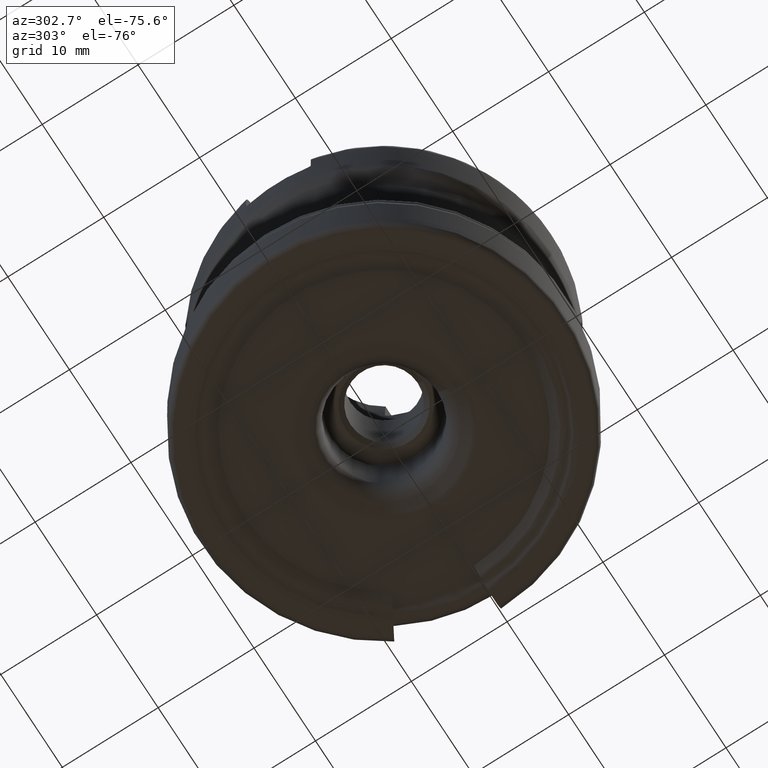
[diagram: clean part render]
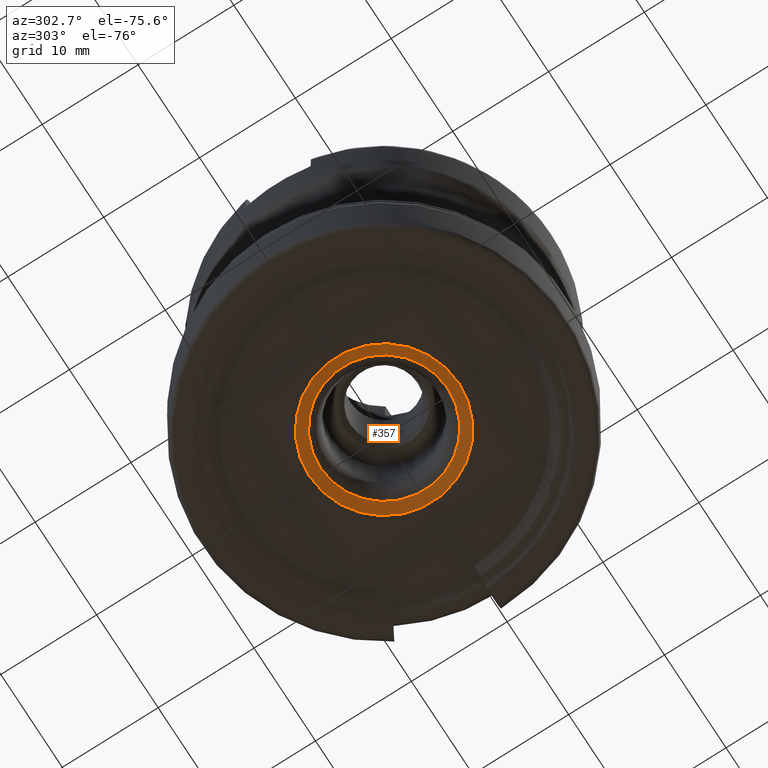
[diagram: same view with one face highlighted and labeled with its STEP entity id]
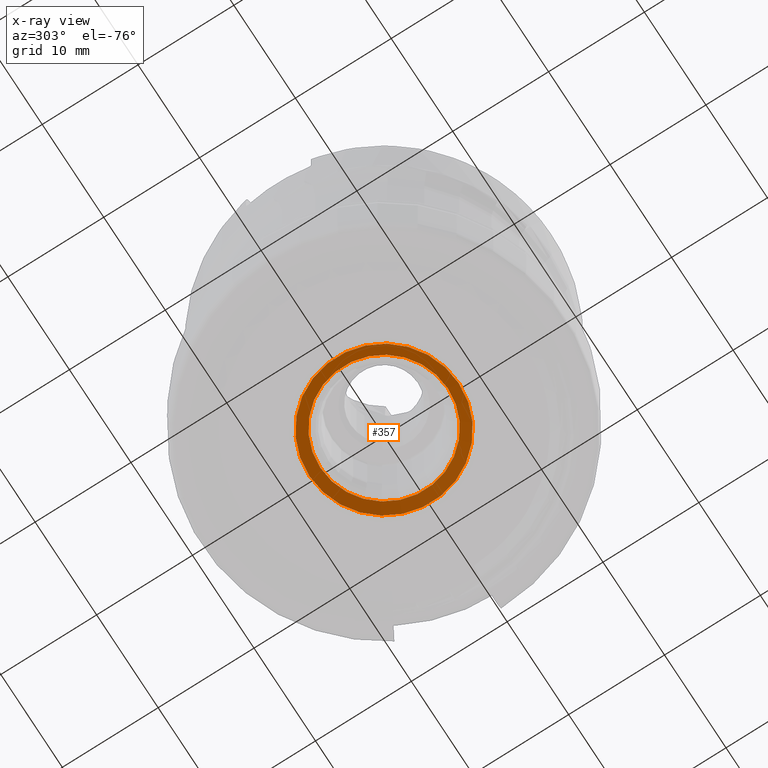
[diagram: x-ray of the same camera — body ghosted, the highlighted face saturated]
A machine part, auxiliary view. The second image highlights one B-rep face of the part: STEP entity #357.
The next image is the same camera in x-ray: the body ghosted, the highlighted face saturated — about 0% of this face is hidden behind the body in this view.
In plain terms, the highlighted conical surface has half-angle 65 deg.
Its self-contained STEP definition (entity closure, byte-faithful):
#184=FACE_BOUND('',#539,.T.);
#185=FACE_BOUND('',#540,.T.);
#252=CONICAL_SURFACE('',#1754,8.2,65.);
#357=ADVANCED_FACE('',(#184,#185),#252,.F.);
#539=EDGE_LOOP('',(#751));
#540=EDGE_LOOP('',(#752));
#751=ORIENTED_EDGE('',*,*,#1305,.T.);
#752=ORIENTED_EDGE('',*,*,#1306,.T.);
#1127=VERTEX_POINT('',#3107);
#1128=VERTEX_POINT('',#3109);
#1305=EDGE_CURVE('',#1127,#1127,#1477,.T.);
#1306=EDGE_CURVE('',#1128,#1128,#1478,.T.);
#1477=CIRCLE('',#1752,7.79815280180448);
#1478=CIRCLE('',#1753,6.6538634765186);
#1752=AXIS2_PLACEMENT_3D('',#3106,#2013,#2014);
#1753=AXIS2_PLACEMENT_3D('',#3108,#2015,#2016);
#1754=AXIS2_PLACEMENT_3D('',#3110,#2017,#2018);
#2013=DIRECTION('',(0.,-1.17145536458252E-15,-1.));
#2014=DIRECTION('',(0.,-1.,1.16787891701363E-15));
#2015=DIRECTION('',(0.,1.17145536458252E-15,1.));
#2016=DIRECTION('',(0.,-1.,1.17319143523816E-15));
#2017=DIRECTION('',(0.,-1.17145536458252E-15,-1.));
#2018=DIRECTION('',(0.,1.,-1.19142491474158E-15));
#3106=CARTESIAN_POINT('',(0.,1.50811339203183E-15,1.2873844259267));
#3107=CARTESIAN_POINT('',(0.,-7.79815280180448,1.28738442592671));
#3108=CARTESIAN_POINT('',(0.,2.13319128565884E-15,1.82097530145252));
#3109=CARTESIAN_POINT('',(0.,-6.6538634765186,1.82097530145253));
#3110=CARTESIAN_POINT('',(0.,1.28860090104078E-15,1.1));